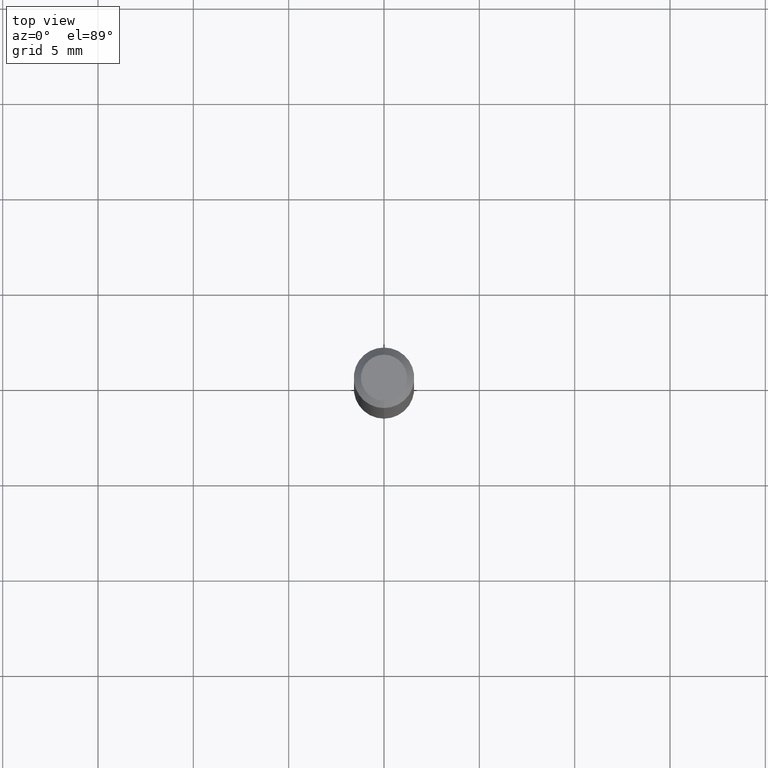
[diagram: clean part render]
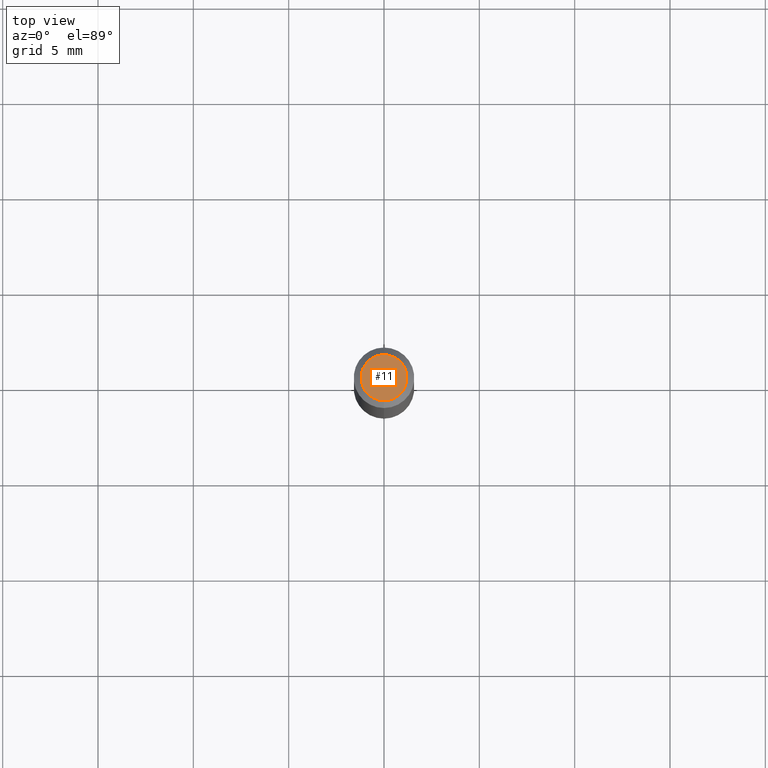
[diagram: same view with one face highlighted and labeled with its STEP entity id]
A machine part, top view. The second image highlights one B-rep face of the part: STEP entity #11.
In plain terms, the highlighted planar face has unit normal (0, -0, -1).
Its self-contained STEP definition (entity closure, byte-faithful):
#11 = ADVANCED_FACE ( 'NONE', ( #188 ), #185, .F. ) ;
#40 = AXIS2_PLACEMENT_3D ( 'NONE', #52, #55, #139 ) ;
#42 = CIRCLE ( 'NONE', #47, 0.04750000000000000749 ) ;
#47 = AXIS2_PLACEMENT_3D ( 'NONE', #407, #402, #270 ) ;
#52 = CARTESIAN_POINT ( 'NONE',  ( -6.680546193665781119E-45, 9.538801561062534046E-31, 2.731913478745722715E-16 ) ) ;
#55 = DIRECTION ( 'NONE',  ( -2.445372536736762504E-29, 3.491619202172534245E-15, 1.000000000000000000 ) ) ;
#64 = CARTESIAN_POINT ( 'NONE',  ( 3.840629472727447874E-16, 0.04750000000000000749, 1.073394357713768884E-16 ) ) ;
#94 = VERTEX_POINT ( 'NONE', #64 ) ;
#137 = DIRECTION ( 'NONE',  ( 2.445372536736761943E-29, -3.491619202172534245E-15, -1.000000000000000000 ) ) ;
#139 = DIRECTION ( 'NONE',  ( -6.982962677686265133E-15, -1.000000000000000000, 3.491619202172534245E-15 ) ) ;
#165 = EDGE_CURVE ( 'NONE', #94, #210, #42, .T. ) ;
#168 = AXIS2_PLACEMENT_3D ( 'NONE', #341, #137, #299 ) ;
#174 = ORIENTED_EDGE ( 'NONE', *, *, #251, .T. ) ;
#185 = PLANE ( 'NONE',  #168 ) ;
#188 = FACE_OUTER_BOUND ( 'NONE', #451, .T. ) ;
#210 = VERTEX_POINT ( 'NONE', #484 ) ;
#251 = EDGE_CURVE ( 'NONE', #210, #94, #390, .T. ) ;
#270 = DIRECTION ( 'NONE',  ( -6.982962677686265133E-15, -1.000000000000000000, 3.491619202172534245E-15 ) ) ;
#299 = DIRECTION ( 'NONE',  ( 6.982962677686265922E-15, 1.000000000000000000, -3.491619202172534245E-15 ) ) ;
#341 = CARTESIAN_POINT ( 'NONE',  ( 3.316907271900976589E-16, 0.04750000000000000749, -2.925623816590924731E-17 ) ) ;
#375 = ORIENTED_EDGE ( 'NONE', *, *, #165, .T. ) ;
#390 = CIRCLE ( 'NONE', #40, 0.04750000000000000749 ) ;
#402 = DIRECTION ( 'NONE',  ( -2.445372536736762504E-29, 3.491619202172534245E-15, 1.000000000000000000 ) ) ;
#407 = CARTESIAN_POINT ( 'NONE',  ( -6.680546193665781119E-45, 9.538801561062534046E-31, 2.731913478745722715E-16 ) ) ;
#451 = EDGE_LOOP ( 'NONE', ( #375, #174 ) ) ;
#484 = CARTESIAN_POINT ( 'NONE',  ( -3.773273898774340269E-16, -0.04750000000000000749, 4.390432599777676669E-16 ) ) ;